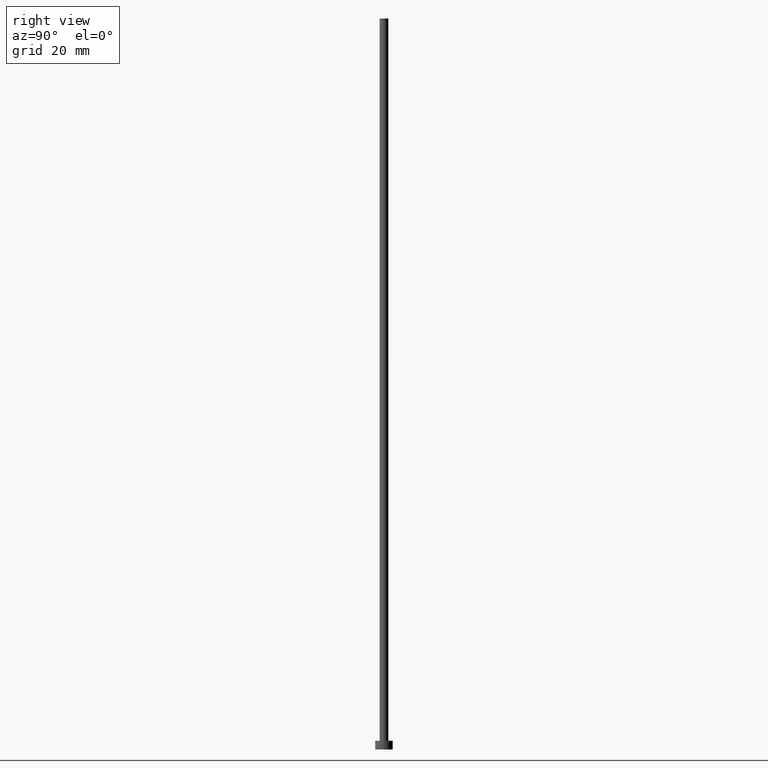
[diagram: clean part render]
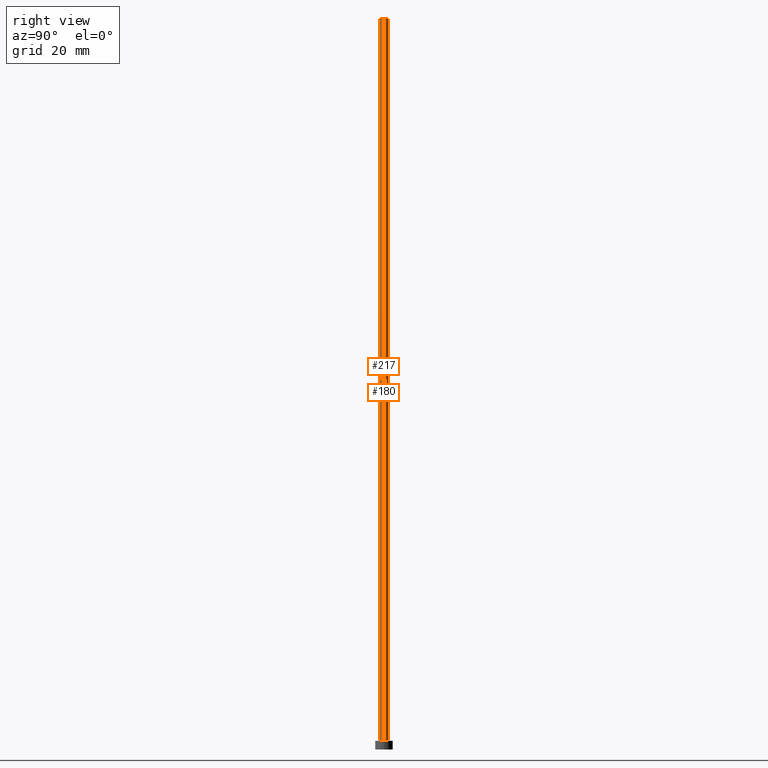
[diagram: same view with one multi-face feature highlighted, each face labeled with its STEP entity id]
A machine part, right view. The highlighted faces form ONE feature: a constant-radius fillet chain: 2 tangent blend faces with common blend radius 1.5 mm. The faces share edges in the B-rep.
Their STEP definitions:
[1] entity #217 (Cylinder):
#8 = ORIENTED_EDGE ( 'NONE', *, *, #188, .F. ) ;
#10 = DIRECTION ( 'NONE',  ( 0.000000000000000000, 0.000000000000000000, 1.000000000000000000 ) ) ;
#22 = ORIENTED_EDGE ( 'NONE', *, *, #175, .F. ) ;
#29 = CARTESIAN_POINT ( 'NONE',  ( -1.500000000000000222, 0.000000000000000000, 250.0000000000000000 ) ) ;
#37 = EDGE_CURVE ( 'NONE', #238, #55, #251, .T. ) ;
#46 = CARTESIAN_POINT ( 'NONE',  ( 0.000000000000000000, 0.000000000000000000, 3.000000000000000000 ) ) ;
#50 = CARTESIAN_POINT ( 'NONE',  ( 0.000000000000000000, 0.000000000000000000, 250.0000000000000000 ) ) ;
#55 = VERTEX_POINT ( 'NONE', #82 ) ;
#57 = ORIENTED_EDGE ( 'NONE', *, *, #37, .T. ) ;
#69 = CARTESIAN_POINT ( 'NONE',  ( 0.000000000000000000, 0.000000000000000000, 250.0000000000000000 ) ) ;
#82 = CARTESIAN_POINT ( 'NONE',  ( -1.500000000000000222, 0.000000000000000000, 3.000000000000000000 ) ) ;
#87 = DIRECTION ( 'NONE',  ( 1.000000000000000000, 0.000000000000000000, 0.000000000000000000 ) ) ;
#96 = DIRECTION ( 'NONE',  ( -1.000000000000000000, 0.000000000000000000, 0.000000000000000000 ) ) ;
#97 = EDGE_CURVE ( 'NONE', #55, #199, #139, .T. ) ;
#98 = CARTESIAN_POINT ( 'NONE',  ( 1.500000000000000222, 1.836970198721030181E-16, 250.0000000000000000 ) ) ;
#100 = DIRECTION ( 'NONE',  ( -0.000000000000000000, -0.000000000000000000, -1.000000000000000000 ) ) ;
#112 = VECTOR ( 'NONE', #142, 1000.000000000000000 ) ;
#119 = FACE_OUTER_BOUND ( 'NONE', #228, .T. ) ;
#120 = CIRCLE ( 'NONE', #166, 1.500000000000000222 ) ;
#122 = DIRECTION ( 'NONE',  ( -0.000000000000000000, -0.000000000000000000, -1.000000000000000000 ) ) ;
#126 = VECTOR ( 'NONE', #100, 1000.000000000000000 ) ;
#127 = LINE ( 'NONE', #98, #126 ) ;
#132 = CARTESIAN_POINT ( 'NONE',  ( -1.500000000000000222, 0.000000000000000000, 250.0000000000000000 ) ) ;
#139 = CIRCLE ( 'NONE', #191, 1.500000000000000222 ) ;
#142 = DIRECTION ( 'NONE',  ( -0.000000000000000000, -0.000000000000000000, -1.000000000000000000 ) ) ;
#148 = DIRECTION ( 'NONE',  ( 0.000000000000000000, 0.000000000000000000, 1.000000000000000000 ) ) ;
#151 = CARTESIAN_POINT ( 'NONE',  ( 1.500000000000000222, 1.836970198721030181E-16, 250.0000000000000000 ) ) ;
#152 = ORIENTED_EDGE ( 'NONE', *, *, #97, .T. ) ;
#163 = DIRECTION ( 'NONE',  ( 1.000000000000000000, 0.000000000000000000, 0.000000000000000000 ) ) ;
#166 = AXIS2_PLACEMENT_3D ( 'NONE', #50, #148, #87 ) ;
#168 = CARTESIAN_POINT ( 'NONE',  ( 1.500000000000000222, 1.836970198721030181E-16, 3.000000000000000000 ) ) ;
#175 = EDGE_CURVE ( 'NONE', #216, #199, #127, .T. ) ;
#188 = EDGE_CURVE ( 'NONE', #238, #216, #120, .T. ) ;
#191 = AXIS2_PLACEMENT_3D ( 'NONE', #46, #10, #163 ) ;
#199 = VERTEX_POINT ( 'NONE', #168 ) ;
#210 = AXIS2_PLACEMENT_3D ( 'NONE', #69, #122, #96 ) ;
#216 = VERTEX_POINT ( 'NONE', #151 ) ;
#217 = ADVANCED_FACE ( 'NONE', ( #119 ), #253, .T. ) ;
#228 = EDGE_LOOP ( 'NONE', ( #22, #8, #57, #152 ) ) ;
#238 = VERTEX_POINT ( 'NONE', #132 ) ;
#251 = LINE ( 'NONE', #29, #112 ) ;
#253 = CYLINDRICAL_SURFACE ( 'NONE', #210, 1.500000000000000222 ) ;
[2] entity #180 (Cylinder):
#13 = AXIS2_PLACEMENT_3D ( 'NONE', #186, #60, #115 ) ;
#29 = CARTESIAN_POINT ( 'NONE',  ( -1.500000000000000222, 0.000000000000000000, 250.0000000000000000 ) ) ;
#33 = AXIS2_PLACEMENT_3D ( 'NONE', #187, #212, #234 ) ;
#37 = EDGE_CURVE ( 'NONE', #238, #55, #251, .T. ) ;
#42 = DIRECTION ( 'NONE',  ( 0.000000000000000000, 0.000000000000000000, 1.000000000000000000 ) ) ;
#55 = VERTEX_POINT ( 'NONE', #82 ) ;
#60 = DIRECTION ( 'NONE',  ( 0.000000000000000000, 0.000000000000000000, 1.000000000000000000 ) ) ;
#78 = CIRCLE ( 'NONE', #230, 1.500000000000000222 ) ;
#82 = CARTESIAN_POINT ( 'NONE',  ( -1.500000000000000222, 0.000000000000000000, 3.000000000000000000 ) ) ;
#98 = CARTESIAN_POINT ( 'NONE',  ( 1.500000000000000222, 1.836970198721030181E-16, 250.0000000000000000 ) ) ;
#100 = DIRECTION ( 'NONE',  ( -0.000000000000000000, -0.000000000000000000, -1.000000000000000000 ) ) ;
#103 = ORIENTED_EDGE ( 'NONE', *, *, #123, .F. ) ;
#112 = VECTOR ( 'NONE', #142, 1000.000000000000000 ) ;
#115 = DIRECTION ( 'NONE',  ( 1.000000000000000000, 0.000000000000000000, 0.000000000000000000 ) ) ;
#123 = EDGE_CURVE ( 'NONE', #216, #238, #227, .T. ) ;
#125 = DIRECTION ( 'NONE',  ( 1.000000000000000000, 0.000000000000000000, 0.000000000000000000 ) ) ;
#126 = VECTOR ( 'NONE', #100, 1000.000000000000000 ) ;
#127 = LINE ( 'NONE', #98, #126 ) ;
#132 = CARTESIAN_POINT ( 'NONE',  ( -1.500000000000000222, 0.000000000000000000, 250.0000000000000000 ) ) ;
#138 = EDGE_CURVE ( 'NONE', #199, #55, #78, .T. ) ;
#140 = CARTESIAN_POINT ( 'NONE',  ( 0.000000000000000000, 0.000000000000000000, 3.000000000000000000 ) ) ;
#142 = DIRECTION ( 'NONE',  ( -0.000000000000000000, -0.000000000000000000, -1.000000000000000000 ) ) ;
#151 = CARTESIAN_POINT ( 'NONE',  ( 1.500000000000000222, 1.836970198721030181E-16, 250.0000000000000000 ) ) ;
#157 = ORIENTED_EDGE ( 'NONE', *, *, #175, .T. ) ;
#168 = CARTESIAN_POINT ( 'NONE',  ( 1.500000000000000222, 1.836970198721030181E-16, 3.000000000000000000 ) ) ;
#172 = CYLINDRICAL_SURFACE ( 'NONE', #33, 1.500000000000000222 ) ;
#175 = EDGE_CURVE ( 'NONE', #216, #199, #127, .T. ) ;
#177 = EDGE_LOOP ( 'NONE', ( #103, #157, #223, #194 ) ) ;
#180 = ADVANCED_FACE ( 'NONE', ( #190 ), #172, .T. ) ;
#186 = CARTESIAN_POINT ( 'NONE',  ( 0.000000000000000000, 0.000000000000000000, 250.0000000000000000 ) ) ;
#187 = CARTESIAN_POINT ( 'NONE',  ( 0.000000000000000000, 0.000000000000000000, 250.0000000000000000 ) ) ;
#190 = FACE_OUTER_BOUND ( 'NONE', #177, .T. ) ;
#194 = ORIENTED_EDGE ( 'NONE', *, *, #37, .F. ) ;
#199 = VERTEX_POINT ( 'NONE', #168 ) ;
#212 = DIRECTION ( 'NONE',  ( -0.000000000000000000, -0.000000000000000000, -1.000000000000000000 ) ) ;
#216 = VERTEX_POINT ( 'NONE', #151 ) ;
#223 = ORIENTED_EDGE ( 'NONE', *, *, #138, .T. ) ;
#227 = CIRCLE ( 'NONE', #13, 1.500000000000000222 ) ;
#230 = AXIS2_PLACEMENT_3D ( 'NONE', #140, #42, #125 ) ;
#234 = DIRECTION ( 'NONE',  ( -1.000000000000000000, 0.000000000000000000, 0.000000000000000000 ) ) ;
#238 = VERTEX_POINT ( 'NONE', #132 ) ;
#251 = LINE ( 'NONE', #29, #112 ) ;